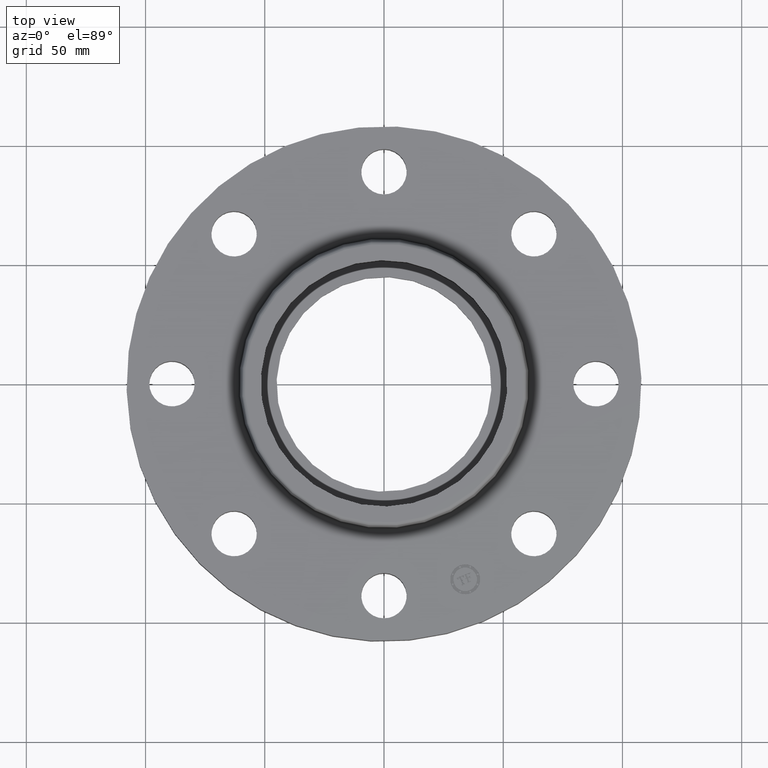
[diagram: clean part render]
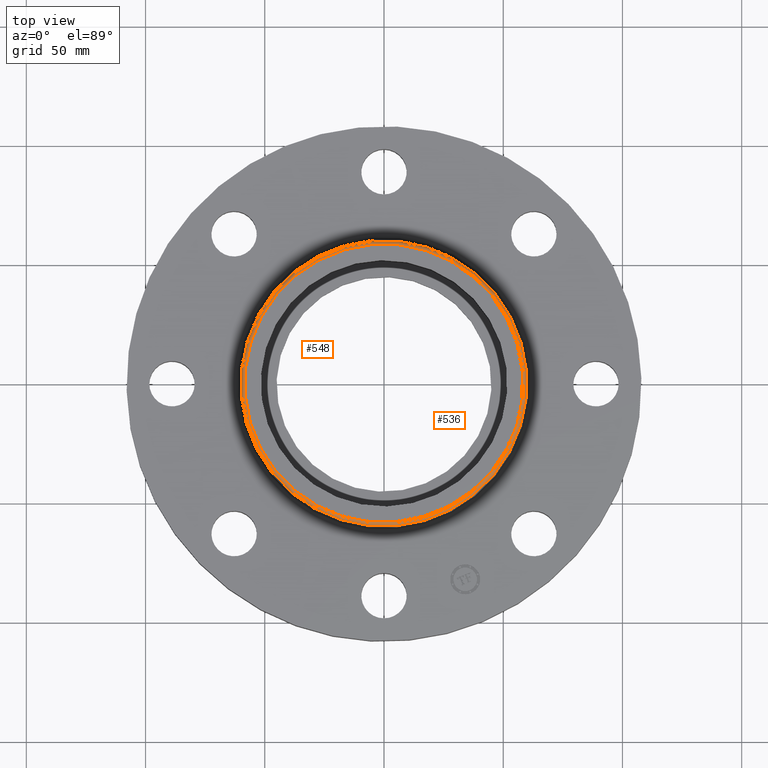
[diagram: same view with one multi-face feature highlighted, each face labeled with its STEP entity id]
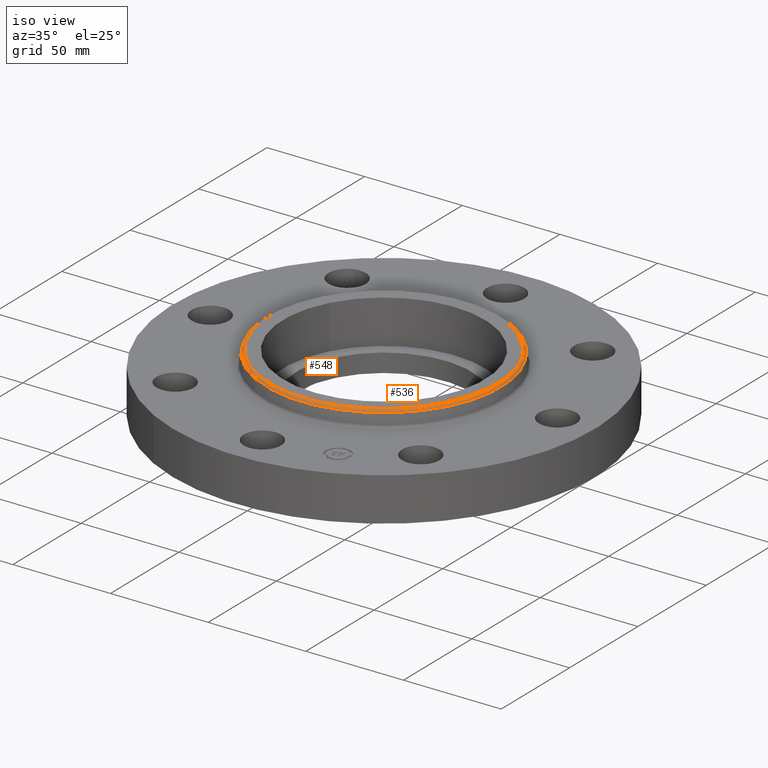
[diagram: same view with one multi-face feature highlighted, each face labeled with its STEP entity id]
A machine part, top view. The highlighted faces form ONE feature: a constant-radius fillet chain: 2 tangent blend faces with common blend radius 1.524 mm. The faces share edges in the B-rep.
A second angle (iso view) of the same feature is appended — it is thin or edge-on in the first view.
Their STEP definitions:
[1] entity #548 (Torus):
#496=AXIS2_PLACEMENT_3D('Circle Axis2P3D',#494,#495,$) ;
#509=AXIS2_PLACEMENT_3D('Torus Axis2P3D',#506,#507,#508) ;
#513=AXIS2_PLACEMENT_3D('Circle Axis2P3D',#511,#512,$) ;
#527=AXIS2_PLACEMENT_3D('Circle Axis2P3D',#525,#526,$) ;
#539=AXIS2_PLACEMENT_3D('Circle Axis2P3D',#537,#538,$) ;
#472=CARTESIAN_POINT('Vertex',(1.13100373815,2.07028845589,1.14041889066)) ;
#479=CARTESIAN_POINT('Vertex',(-1.13100373815,-2.07028845589,1.14041889066)) ;
#494=CARTESIAN_POINT('Axis2P3D Location',(0.,0.,1.14041889066)) ;
#506=CARTESIAN_POINT('Axis2P3D Location',(0.,0.,1.13)) ;
#511=CARTESIAN_POINT('Axis2P3D Location',(1.1026752189,2.01843344924,1.13)) ;
#515=CARTESIAN_POINT('Vertex',(1.1026752189,2.01843344924,1.19)) ;
#522=CARTESIAN_POINT('Vertex',(-1.1026752189,-2.01843344924,1.19)) ;
#525=CARTESIAN_POINT('Axis2P3D Location',(-1.1026752189,-2.01843344924,1.13)) ;
#537=CARTESIAN_POINT('Axis2P3D Location',(0.,0.,1.19)) ;
#495=DIRECTION('Axis2P3D Direction',(0.,0.,-0.0393700787402)) ;
#507=DIRECTION('Axis2P3D Direction',(0.,0.,-0.0393700787402)) ;
#508=DIRECTION('Axis2P3D XDirection',(-0.0188750212049,-0.0345504945626,0.)) ;
#512=DIRECTION('Axis2P3D Direction',(-0.0345504945626,0.0188750212049,0.)) ;
#526=DIRECTION('Axis2P3D Direction',(0.0345504945626,-0.0188750212049,0.)) ;
#538=DIRECTION('Axis2P3D Direction',(0.,0.,-0.0393700787402)) ;
#543=ORIENTED_EDGE('',*,*,#498,.F.) ;
#544=ORIENTED_EDGE('',*,*,#529,.T.) ;
#545=ORIENTED_EDGE('',*,*,#541,.T.) ;
#546=ORIENTED_EDGE('',*,*,#517,.F.) ;
#548=ADVANCED_FACE('PartBody',(#547),#510,.T.) ;
#497=CIRCLE('generated circle',#496,2.3590811233) ;
#514=CIRCLE('generated circle',#513,0.0600000000002) ;
#528=CIRCLE('generated circle',#527,0.0600000000002) ;
#540=CIRCLE('generated circle',#539,2.29999265812) ;
#510=TOROIDAL_SURFACE('homeo Torus',#509,2.29999265812,0.0600000000002) ;
#498=EDGE_CURVE('',#480,#473,#497,.T.) ;
#517=EDGE_CURVE('',#473,#516,#514,.F.) ;
#529=EDGE_CURVE('',#480,#523,#528,.F.) ;
#541=EDGE_CURVE('',#523,#516,#540,.T.) ;
#542=EDGE_LOOP('',(#543,#544,#545,#546)) ;
#547=FACE_OUTER_BOUND('',#542,.T.) ;
#473=VERTEX_POINT('',#472) ;
#480=VERTEX_POINT('',#479) ;
#516=VERTEX_POINT('',#515) ;
#523=VERTEX_POINT('',#522) ;
[2] entity #536 (Torus):
#477=AXIS2_PLACEMENT_3D('Circle Axis2P3D',#475,#476,$) ;
#509=AXIS2_PLACEMENT_3D('Torus Axis2P3D',#506,#507,#508) ;
#513=AXIS2_PLACEMENT_3D('Circle Axis2P3D',#511,#512,$) ;
#520=AXIS2_PLACEMENT_3D('Circle Axis2P3D',#518,#519,$) ;
#527=AXIS2_PLACEMENT_3D('Circle Axis2P3D',#525,#526,$) ;
#472=CARTESIAN_POINT('Vertex',(1.13100373815,2.07028845589,1.14041889066)) ;
#475=CARTESIAN_POINT('Axis2P3D Location',(0.,0.,1.14041889066)) ;
#479=CARTESIAN_POINT('Vertex',(-1.13100373815,-2.07028845589,1.14041889066)) ;
#506=CARTESIAN_POINT('Axis2P3D Location',(0.,0.,1.13)) ;
#511=CARTESIAN_POINT('Axis2P3D Location',(1.1026752189,2.01843344924,1.13)) ;
#515=CARTESIAN_POINT('Vertex',(1.1026752189,2.01843344924,1.19)) ;
#518=CARTESIAN_POINT('Axis2P3D Location',(0.,0.,1.19)) ;
#522=CARTESIAN_POINT('Vertex',(-1.1026752189,-2.01843344924,1.19)) ;
#525=CARTESIAN_POINT('Axis2P3D Location',(-1.1026752189,-2.01843344924,1.13)) ;
#476=DIRECTION('Axis2P3D Direction',(0.,0.,-0.0393700787402)) ;
#507=DIRECTION('Axis2P3D Direction',(0.,0.,-0.0393700787402)) ;
#508=DIRECTION('Axis2P3D XDirection',(-0.0188750212049,-0.0345504945626,0.)) ;
#512=DIRECTION('Axis2P3D Direction',(-0.0345504945626,0.0188750212049,0.)) ;
#519=DIRECTION('Axis2P3D Direction',(0.,0.,-0.0393700787402)) ;
#526=DIRECTION('Axis2P3D Direction',(0.0345504945626,-0.0188750212049,0.)) ;
#531=ORIENTED_EDGE('',*,*,#481,.F.) ;
#532=ORIENTED_EDGE('',*,*,#517,.T.) ;
#533=ORIENTED_EDGE('',*,*,#524,.T.) ;
#534=ORIENTED_EDGE('',*,*,#529,.F.) ;
#536=ADVANCED_FACE('PartBody',(#535),#510,.T.) ;
#478=CIRCLE('generated circle',#477,2.3590811233) ;
#514=CIRCLE('generated circle',#513,0.0600000000002) ;
#521=CIRCLE('generated circle',#520,2.29999265812) ;
#528=CIRCLE('generated circle',#527,0.0600000000002) ;
#510=TOROIDAL_SURFACE('homeo Torus',#509,2.29999265812,0.0600000000002) ;
#481=EDGE_CURVE('',#473,#480,#478,.T.) ;
#517=EDGE_CURVE('',#473,#516,#514,.F.) ;
#524=EDGE_CURVE('',#516,#523,#521,.T.) ;
#529=EDGE_CURVE('',#480,#523,#528,.F.) ;
#530=EDGE_LOOP('',(#531,#532,#533,#534)) ;
#535=FACE_OUTER_BOUND('',#530,.T.) ;
#473=VERTEX_POINT('',#472) ;
#480=VERTEX_POINT('',#479) ;
#516=VERTEX_POINT('',#515) ;
#523=VERTEX_POINT('',#522) ;